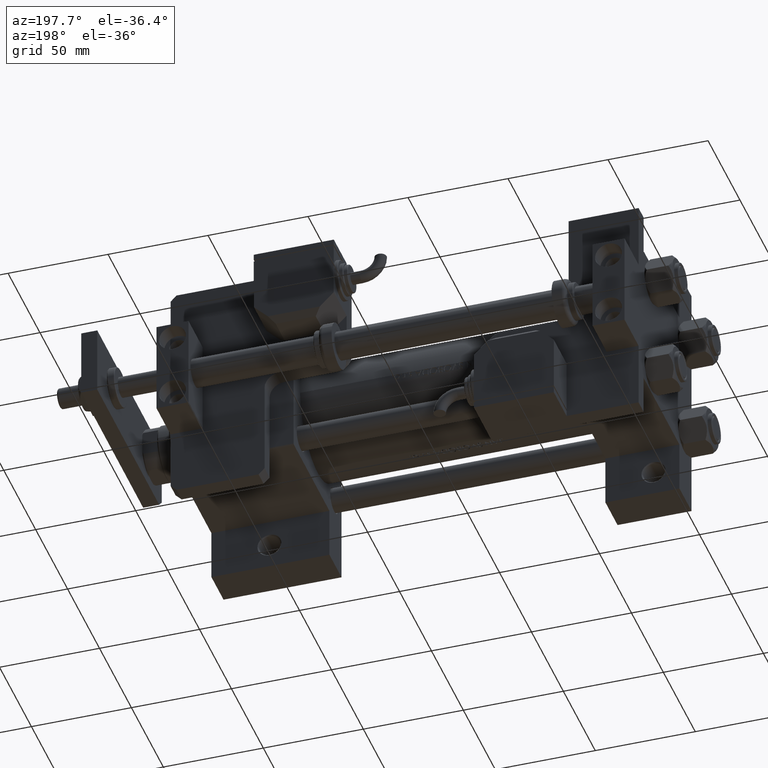
[diagram: clean part render]
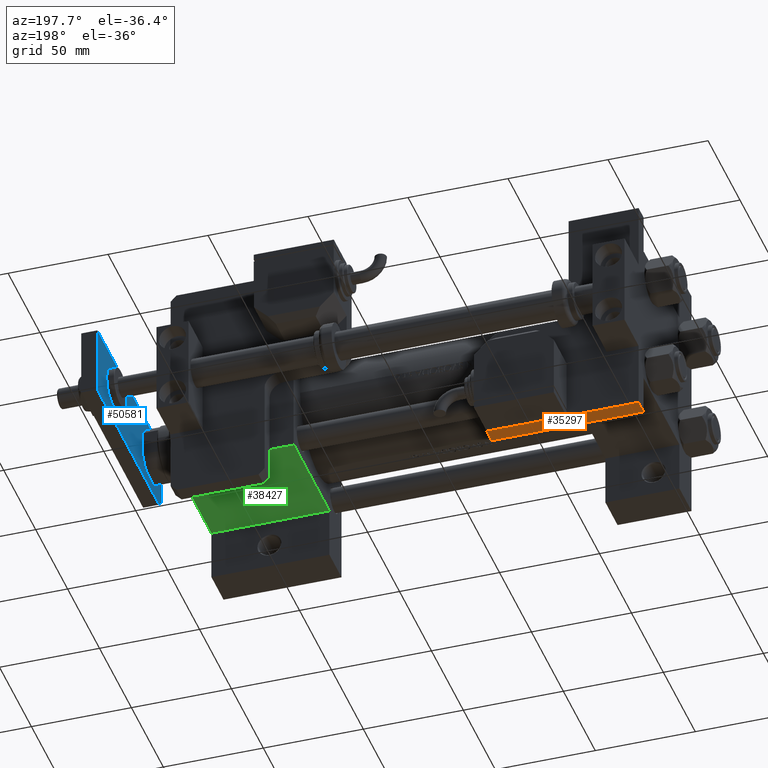
[diagram: same view with three faces highlighted in distinct colors, each labeled with its STEP entity id]
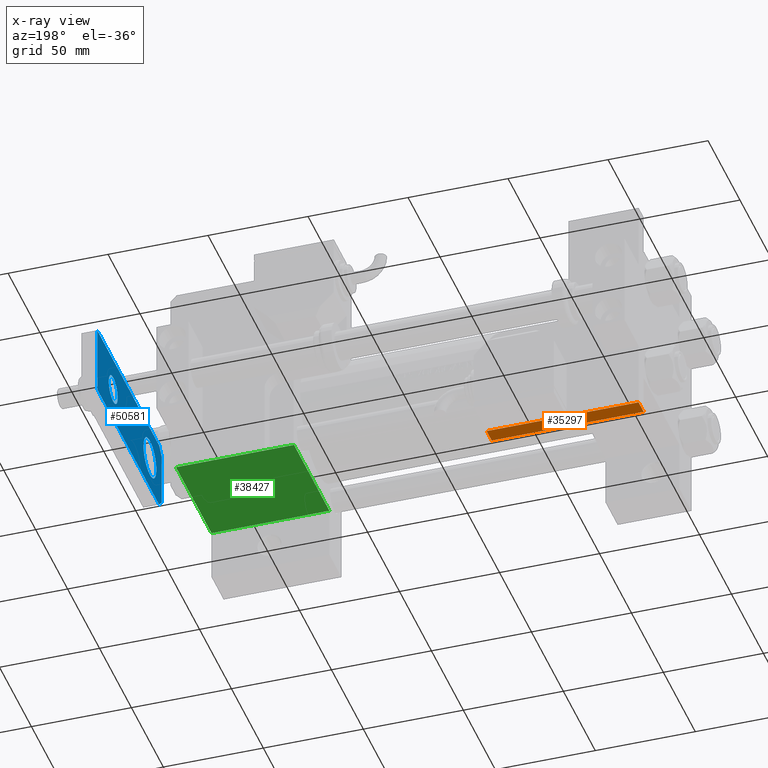
[diagram: x-ray of the same camera — body ghosted, the three highlighted faces saturated]
A machine part, auxiliary view with three faces highlighted in distinct colors.
The next image is the same camera in x-ray (body ghosted, the three faces saturated) — at least one of them is partly hidden behind the body in this view.
Their STEP definitions:

[orange] entity #35297 — the highlighted planar face has unit normal (0, -0, 1).
#442 = ORIENTED_EDGE ( 'NONE', *, *, #40861, .F. ) ;
#2506 = CARTESIAN_POINT ( 'NONE',  ( -76.00000000000004263, 0.000000000000000000, 8.000000000000000000 ) ) ;
#2593 = DIRECTION ( 'NONE',  ( 0.000000000000000000, -0.000000000000000000, 1.000000000000000000 ) ) ;
#3140 = CARTESIAN_POINT ( 'NONE',  ( -76.00000000000004263, 0.000000000000000000, 8.000000000000000000 ) ) ;
#4037 = ORIENTED_EDGE ( 'NONE', *, *, #42923, .T. ) ;
#7199 = CARTESIAN_POINT ( 'NONE',  ( 0.000000000000000000, 0.000000000000000000, 0.000000000000000000 ) ) ;
#8112 = DIRECTION ( 'NONE',  ( 1.000000000000000000, 0.000000000000000000, 0.000000000000000000 ) ) ;
#8478 = EDGE_LOOP ( 'NONE', ( #12649, #442, #44980, #4037 ) ) ;
#10044 = VECTOR ( 'NONE', #32163, 1000.000000000000000 ) ;
#10844 = EDGE_CURVE ( 'NONE', #44985, #44896, #29140, .T. ) ;
#12649 = ORIENTED_EDGE ( 'NONE', *, *, #10844, .T. ) ;
#12945 = CARTESIAN_POINT ( 'NONE',  ( 0.000000000000000000, 0.000000000000000000, 8.000000000000000000 ) ) ;
#14387 = VECTOR ( 'NONE', #8112, 1000.000000000000000 ) ;
#19598 = DIRECTION ( 'NONE',  ( 0.000000000000000000, 1.000000000000000000, 0.000000000000000000 ) ) ;
#21772 = CARTESIAN_POINT ( 'NONE',  ( 0.000000000000000000, 0.000000000000000000, 8.000000000000000000 ) ) ;
#22038 = DIRECTION ( 'NONE',  ( -0.000000000000000000, -0.000000000000000000, -1.000000000000000000 ) ) ;
#23294 = VERTEX_POINT ( 'NONE', #12945 ) ;
#29140 = LINE ( 'NONE', #32392, #14387 ) ;
#29535 = CARTESIAN_POINT ( 'NONE',  ( -76.00000000000004263, 0.000000000000000000, 0.000000000000000000 ) ) ;
#29712 = AXIS2_PLACEMENT_3D ( 'NONE', #3140, #19598, #2593 ) ;
#32163 = DIRECTION ( 'NONE',  ( -0.000000000000000000, -0.000000000000000000, -1.000000000000000000 ) ) ;
#32392 = CARTESIAN_POINT ( 'NONE',  ( -76.00000000000004263, 0.000000000000000000, 0.000000000000000000 ) ) ;
#32859 = VERTEX_POINT ( 'NONE', #41027 ) ;
#35193 = PLANE ( 'NONE',  #29712 ) ;
#35297 = ADVANCED_FACE ( 'NONE', ( #35731 ), #35193, .F. ) ;
#35665 = VECTOR ( 'NONE', #44003, 1000.000000000000000 ) ;
#35731 = FACE_OUTER_BOUND ( 'NONE', #8478, .T. ) ;
#36201 = LINE ( 'NONE', #52645, #10044 ) ;
#36865 = EDGE_CURVE ( 'NONE', #32859, #23294, #47779, .T. ) ;
#37570 = VECTOR ( 'NONE', #22038, 1000.000000000000000 ) ;
#38982 = LINE ( 'NONE', #21772, #37570 ) ;
#40861 = EDGE_CURVE ( 'NONE', #23294, #44896, #38982, .T. ) ;
#41027 = CARTESIAN_POINT ( 'NONE',  ( -76.00000000000004263, 0.000000000000000000, 8.000000000000000000 ) ) ;
#42923 = EDGE_CURVE ( 'NONE', #32859, #44985, #36201, .T. ) ;
#44003 = DIRECTION ( 'NONE',  ( 1.000000000000000000, 0.000000000000000000, 0.000000000000000000 ) ) ;
#44896 = VERTEX_POINT ( 'NONE', #7199 ) ;
#44980 = ORIENTED_EDGE ( 'NONE', *, *, #36865, .F. ) ;
#44985 = VERTEX_POINT ( 'NONE', #29535 ) ;
#47779 = LINE ( 'NONE', #2506, #35665 ) ;
#52645 = CARTESIAN_POINT ( 'NONE',  ( -76.00000000000004263, 0.000000000000000000, 8.000000000000000000 ) ) ;

[blue] entity #50581 — the highlighted planar face has unit normal (1, 0, 0).
#1066 = DIRECTION ( 'NONE',  ( 1.000000000000000000, 0.000000000000000000, 0.000000000000000000 ) ) ;
#1308 = AXIS2_PLACEMENT_3D ( 'NONE', #5597, #22047, #42782 ) ;
#2361 = VERTEX_POINT ( 'NONE', #25948 ) ;
#3009 = ORIENTED_EDGE ( 'NONE', *, *, #10781, .T. ) ;
#3073 = VECTOR ( 'NONE', #21425, 1000.000000000000000 ) ;
#3875 = DIRECTION ( 'NONE',  ( -1.000000000000000000, 0.000000000000000000, 0.000000000000000000 ) ) ;
#4091 = CARTESIAN_POINT ( 'NONE',  ( 0.000000000000000000, 18.50000000000001066, 0.000000000000000000 ) ) ;
#4618 = DIRECTION ( 'NONE',  ( 1.000000000000000000, 0.000000000000000000, 0.000000000000000000 ) ) ;
#4820 = ORIENTED_EDGE ( 'NONE', *, *, #39865, .F. ) ;
#5047 = EDGE_CURVE ( 'NONE', #36501, #2361, #7707, .T. ) ;
#5597 = CARTESIAN_POINT ( 'NONE',  ( 0.000000000000000000, 0.000000000000000000, 0.000000000000000000 ) ) ;
#5661 = VECTOR ( 'NONE', #27905, 1000.000000000000000 ) ;
#6300 = DIRECTION ( 'NONE',  ( 0.000000000000000000, 0.000000000000000000, 1.000000000000000000 ) ) ;
#6480 = EDGE_CURVE ( 'NONE', #38446, #38807, #39990, .T. ) ;
#6702 = LINE ( 'NONE', #31505, #47866 ) ;
#7707 = LINE ( 'NONE', #19859, #5661 ) ;
#8660 = VERTEX_POINT ( 'NONE', #35150 ) ;
#8756 = CARTESIAN_POINT ( 'NONE',  ( -17.50000000000001066, 9.629649721936179265E-32, 0.000000000000000000 ) ) ;
#9915 = FACE_OUTER_BOUND ( 'NONE', #32142, .T. ) ;
#10781 = EDGE_CURVE ( 'NONE', #8660, #41088, #18704, .T. ) ;
#10798 = AXIS2_PLACEMENT_3D ( 'NONE', #34459, #50906, #1066 ) ;
#12632 = ORIENTED_EDGE ( 'NONE', *, *, #16270, .T. ) ;
#13334 = CARTESIAN_POINT ( 'NONE',  ( 0.000000000000000000, 76.00000000000001421, 0.000000000000000000 ) ) ;
#14915 = DIRECTION ( 'NONE',  ( -0.7071067811865462405, 0.7071067811865489050, -0.000000000000000000 ) ) ;
#14992 = EDGE_LOOP ( 'NONE', ( #42242, #33717 ) ) ;
#15956 = DIRECTION ( 'NONE',  ( 0.000000000000000000, 0.000000000000000000, 1.000000000000000000 ) ) ;
#16270 = EDGE_CURVE ( 'NONE', #26713, #31994, #19516, .T. ) ;
#17464 = DIRECTION ( 'NONE',  ( -1.030528797609984342E-16, 1.000000000000000000, 0.000000000000000000 ) ) ;
#18533 = FACE_BOUND ( 'NONE', #35551, .T. ) ;
#18704 = CIRCLE ( 'NONE', #41050, 10.00000000000000178 ) ;
#18778 = EDGE_CURVE ( 'NONE', #36499, #19520, #43913, .T. ) ;
#18828 = DIRECTION ( 'NONE',  ( 0.000000000000000000, 0.000000000000000000, 1.000000000000000000 ) ) ;
#19047 = CARTESIAN_POINT ( 'NONE',  ( -17.50000000000000355, 101.0000000000000000, 0.000000000000000000 ) ) ;
#19516 = LINE ( 'NONE', #39704, #22322 ) ;
#19520 = VERTEX_POINT ( 'NONE', #49354 ) ;
#19859 = CARTESIAN_POINT ( 'NONE',  ( 17.50000000000001066, 4.000000000000003553, 0.000000000000000000 ) ) ;
#21425 = DIRECTION ( 'NONE',  ( 1.000000000000000000, 0.000000000000000000, 0.000000000000000000 ) ) ;
#22047 = DIRECTION ( 'NONE',  ( -0.000000000000000000, 0.000000000000000000, 1.000000000000000000 ) ) ;
#22322 = VECTOR ( 'NONE', #14915, 999.9999999999998863 ) ;
#22558 = CARTESIAN_POINT ( 'NONE',  ( 17.50000000000001066, 9.629649721936179265E-32, 0.000000000000000000 ) ) ;
#22856 = CIRCLE ( 'NONE', #10798, 10.00000000000000178 ) ;
#24371 = CARTESIAN_POINT ( 'NONE',  ( 17.50000000000000000, 101.0000000000000000, 0.000000000000000000 ) ) ;
#25829 = ORIENTED_EDGE ( 'NONE', *, *, #48526, .T. ) ;
#25948 = CARTESIAN_POINT ( 'NONE',  ( 13.49999999999999467, 9.629649721936179265E-32, 0.000000000000000000 ) ) ;
#26384 = DIRECTION ( 'NONE',  ( 1.000000000000000000, 0.000000000000000000, 0.000000000000000000 ) ) ;
#26713 = VERTEX_POINT ( 'NONE', #37458 ) ;
#27831 = CIRCLE ( 'NONE', #35557, 7.000000000000003553 ) ;
#27905 = DIRECTION ( 'NONE',  ( -0.7071067811865487940, -0.7071067811865463515, -0.000000000000000000 ) ) ;
#28255 = ORIENTED_EDGE ( 'NONE', *, *, #6480, .F. ) ;
#30028 = EDGE_CURVE ( 'NONE', #36501, #38446, #36872, .T. ) ;
#30622 = EDGE_CURVE ( 'NONE', #19520, #36499, #27831, .T. ) ;
#30946 = CARTESIAN_POINT ( 'NONE',  ( 0.000000000000000000, 76.00000000000001421, 0.000000000000000000 ) ) ;
#31259 = VECTOR ( 'NONE', #17464, 1000.000000000000000 ) ;
#31505 = CARTESIAN_POINT ( 'NONE',  ( -17.50000000000000355, 101.0000000000000000, 0.000000000000000000 ) ) ;
#31994 = VERTEX_POINT ( 'NONE', #53152 ) ;
#32142 = EDGE_LOOP ( 'NONE', ( #43626, #12632, #4820, #28255, #41785, #38529 ) ) ;
#32495 = LINE ( 'NONE', #8756, #3073 ) ;
#33717 = ORIENTED_EDGE ( 'NONE', *, *, #30622, .T. ) ;
#34459 = CARTESIAN_POINT ( 'NONE',  ( 0.000000000000000000, 18.50000000000001066, 0.000000000000000000 ) ) ;
#34941 = PLANE ( 'NONE',  #1308 ) ;
#35150 = CARTESIAN_POINT ( 'NONE',  ( 10.00000000000000178, 18.50000000000001066, 0.000000000000000000 ) ) ;
#35551 = EDGE_LOOP ( 'NONE', ( #25829, #3009 ) ) ;
#35557 = AXIS2_PLACEMENT_3D ( 'NONE', #13334, #6300, #47273 ) ;
#35807 = VECTOR ( 'NONE', #3875, 1000.000000000000000 ) ;
#36499 = VERTEX_POINT ( 'NONE', #51857 ) ;
#36501 = VERTEX_POINT ( 'NONE', #48351 ) ;
#36872 = LINE ( 'NONE', #22558, #31259 ) ;
#37458 = CARTESIAN_POINT ( 'NONE',  ( -13.50000000000002309, 9.629649721936179265E-32, 0.000000000000000000 ) ) ;
#37868 = CARTESIAN_POINT ( 'NONE',  ( -10.00000000000000178, 18.50000000000001066, 0.000000000000000000 ) ) ;
#38446 = VERTEX_POINT ( 'NONE', #41764 ) ;
#38529 = ORIENTED_EDGE ( 'NONE', *, *, #5047, .T. ) ;
#38737 = FACE_BOUND ( 'NONE', #14992, .T. ) ;
#38807 = VERTEX_POINT ( 'NONE', #19047 ) ;
#39577 = DIRECTION ( 'NONE',  ( -6.870191984066562689E-17, -1.000000000000000000, 0.000000000000000000 ) ) ;
#39704 = CARTESIAN_POINT ( 'NONE',  ( -13.50000000000002309, 9.629649721936179265E-32, 0.000000000000000000 ) ) ;
#39865 = EDGE_CURVE ( 'NONE', #38807, #31994, #6702, .T. ) ;
#39990 = LINE ( 'NONE', #24371, #35807 ) ;
#41050 = AXIS2_PLACEMENT_3D ( 'NONE', #4091, #15956, #4618 ) ;
#41088 = VERTEX_POINT ( 'NONE', #37868 ) ;
#41764 = CARTESIAN_POINT ( 'NONE',  ( 17.50000000000000000, 101.0000000000000000, 0.000000000000000000 ) ) ;
#41785 = ORIENTED_EDGE ( 'NONE', *, *, #30028, .F. ) ;
#42242 = ORIENTED_EDGE ( 'NONE', *, *, #18778, .T. ) ;
#42782 = DIRECTION ( 'NONE',  ( 1.000000000000000000, 0.000000000000000000, 0.000000000000000000 ) ) ;
#43626 = ORIENTED_EDGE ( 'NONE', *, *, #52044, .F. ) ;
#43913 = CIRCLE ( 'NONE', #49089, 7.000000000000003553 ) ;
#47273 = DIRECTION ( 'NONE',  ( 1.000000000000000000, 0.000000000000000000, 0.000000000000000000 ) ) ;
#47866 = VECTOR ( 'NONE', #39577, 1000.000000000000000 ) ;
#48351 = CARTESIAN_POINT ( 'NONE',  ( 17.50000000000001066, 4.000000000000003553, 0.000000000000000000 ) ) ;
#48526 = EDGE_CURVE ( 'NONE', #41088, #8660, #22856, .T. ) ;
#49089 = AXIS2_PLACEMENT_3D ( 'NONE', #30946, #18828, #26384 ) ;
#49354 = CARTESIAN_POINT ( 'NONE',  ( 7.000000000000003553, 76.00000000000001421, 0.000000000000000000 ) ) ;
#50581 = ADVANCED_FACE ( 'NONE', ( #9915, #38737, #18533 ), #34941, .F. ) ;
#50906 = DIRECTION ( 'NONE',  ( 0.000000000000000000, 0.000000000000000000, 1.000000000000000000 ) ) ;
#51857 = CARTESIAN_POINT ( 'NONE',  ( -7.000000000000003553, 76.00000000000001421, 0.000000000000000000 ) ) ;
#52044 = EDGE_CURVE ( 'NONE', #26713, #2361, #32495, .T. ) ;
#53152 = CARTESIAN_POINT ( 'NONE',  ( -17.50000000000001066, 4.000000000000003553, 0.000000000000000000 ) ) ;

[green] entity #38427 — the highlighted planar face has unit normal (0, 0, -1).
#34 = FACE_OUTER_BOUND ( 'NONE', #51528, .T. ) ;
#1393 = VECTOR ( 'NONE', #9376, 1000.000000000000000 ) ;
#4534 = CARTESIAN_POINT ( 'NONE',  ( 175.0000000000000284, 37.50000000000000000, 37.49999999999999289 ) ) ;
#8892 = DIRECTION ( 'NONE',  ( 0.000000000000000000, -0.000000000000000000, 1.000000000000000000 ) ) ;
#9376 = DIRECTION ( 'NONE',  ( 0.000000000000000000, 0.000000000000000000, -1.000000000000000000 ) ) ;
#12539 = AXIS2_PLACEMENT_3D ( 'NONE', #12689, #29377, #8892 ) ;
#12689 = CARTESIAN_POINT ( 'NONE',  ( 234.0000000000000000, 37.50000000000000000, 37.49999999999999289 ) ) ;
#16125 = VECTOR ( 'NONE', #48758, 1000.000000000000000 ) ;
#18483 = VERTEX_POINT ( 'NONE', #41814 ) ;
#20088 = ORIENTED_EDGE ( 'NONE', *, *, #49742, .T. ) ;
#23065 = CARTESIAN_POINT ( 'NONE',  ( 175.0000000000000284, 37.50000000000000000, -18.50000000000000000 ) ) ;
#23499 = VECTOR ( 'NONE', #49805, 1000.000000000000000 ) ;
#23923 = VERTEX_POINT ( 'NONE', #35180 ) ;
#25734 = VERTEX_POINT ( 'NONE', #31562 ) ;
#28779 = LINE ( 'NONE', #4534, #23499 ) ;
#29377 = DIRECTION ( 'NONE',  ( -0.000000000000000000, 1.000000000000000000, 0.000000000000000000 ) ) ;
#29919 = EDGE_CURVE ( 'NONE', #36569, #23923, #28779, .T. ) ;
#30874 = DIRECTION ( 'NONE',  ( -1.000000000000000000, 3.528251137579946599E-16, -0.000000000000000000 ) ) ;
#31562 = CARTESIAN_POINT ( 'NONE',  ( 234.0000000000000000, 37.49999999999997868, -18.50000000000000000 ) ) ;
#33880 = LINE ( 'NONE', #41978, #1393 ) ;
#35180 = CARTESIAN_POINT ( 'NONE',  ( 175.0000000000000284, 37.50000000000000000, -18.50000000000000355 ) ) ;
#36363 = CARTESIAN_POINT ( 'NONE',  ( 234.0000000000000000, 37.50000000000000000, 37.00000000000002132 ) ) ;
#36569 = VERTEX_POINT ( 'NONE', #36754 ) ;
#36754 = CARTESIAN_POINT ( 'NONE',  ( 175.0000000000000284, 37.50000000000000000, 37.00000000000002132 ) ) ;
#38427 = ADVANCED_FACE ( 'NONE', ( #34 ), #49607, .T. ) ;
#38627 = ORIENTED_EDGE ( 'NONE', *, *, #29919, .F. ) ;
#41720 = EDGE_CURVE ( 'NONE', #36569, #18483, #47742, .T. ) ;
#41814 = CARTESIAN_POINT ( 'NONE',  ( 234.0000000000000000, 37.50000000000000000, 37.00000000000002132 ) ) ;
#41978 = CARTESIAN_POINT ( 'NONE',  ( 234.0000000000000000, 37.50000000000000000, 37.49999999999999289 ) ) ;
#42235 = VECTOR ( 'NONE', #30874, 1000.000000000000000 ) ;
#47311 = LINE ( 'NONE', #23065, #42235 ) ;
#47742 = LINE ( 'NONE', #36363, #16125 ) ;
#47750 = ORIENTED_EDGE ( 'NONE', *, *, #41720, .T. ) ;
#47968 = EDGE_CURVE ( 'NONE', #25734, #23923, #47311, .T. ) ;
#48758 = DIRECTION ( 'NONE',  ( 1.000000000000000000, 0.000000000000000000, 0.000000000000000000 ) ) ;
#49607 = PLANE ( 'NONE',  #12539 ) ;
#49742 = EDGE_CURVE ( 'NONE', #18483, #25734, #33880, .T. ) ;
#49805 = DIRECTION ( 'NONE',  ( 0.000000000000000000, 0.000000000000000000, -1.000000000000000000 ) ) ;
#50206 = ORIENTED_EDGE ( 'NONE', *, *, #47968, .T. ) ;
#51528 = EDGE_LOOP ( 'NONE', ( #38627, #47750, #20088, #50206 ) ) ;